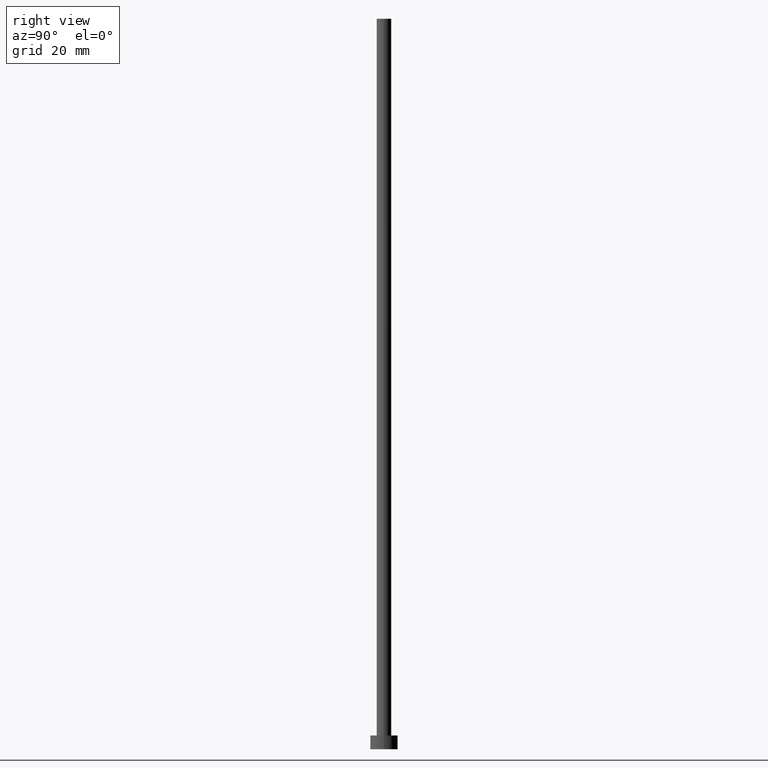
[diagram: clean part render]
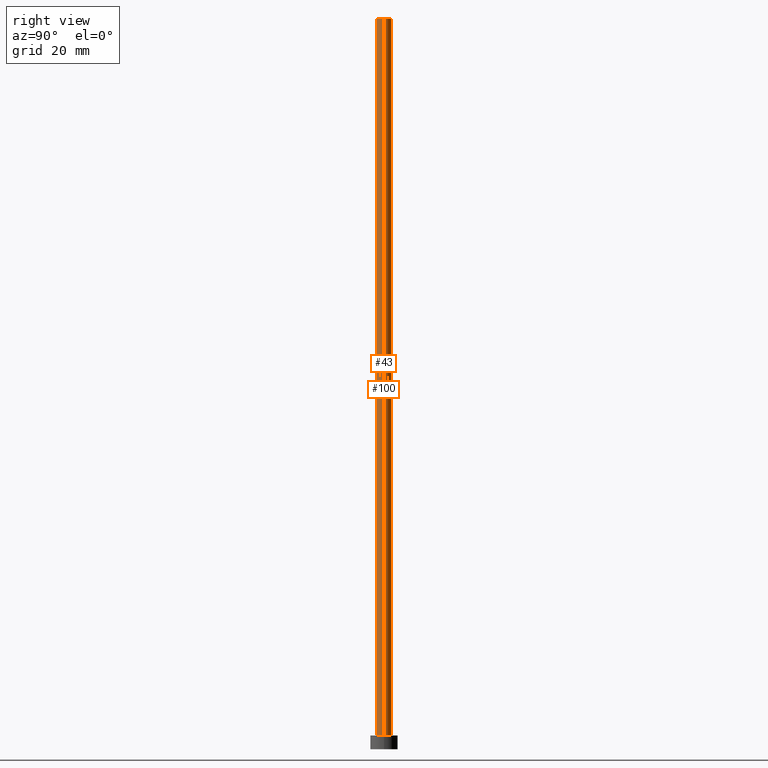
[diagram: same view with one multi-face feature highlighted, each face labeled with its STEP entity id]
A machine part, right view. The highlighted faces form ONE feature: a constant-radius fillet chain: 2 tangent blend faces with common blend radius 1.6 mm. The faces share edges in the B-rep.
Their STEP definitions:
[1] entity #43 (Cylinder):
#10 = LINE ( 'NONE', #153, #67 ) ;
#15 = CARTESIAN_POINT ( 'NONE',  ( 1.600000000000000089, 1.959434878635765230E-16, 160.0000000000000000 ) ) ;
#20 = VERTEX_POINT ( 'NONE', #71 ) ;
#29 = VERTEX_POINT ( 'NONE', #229 ) ;
#31 = AXIS2_PLACEMENT_3D ( 'NONE', #93, #37, #138 ) ;
#32 = DIRECTION ( 'NONE',  ( 1.000000000000000000, 0.000000000000000000, 0.000000000000000000 ) ) ;
#37 = DIRECTION ( 'NONE',  ( 0.000000000000000000, 0.000000000000000000, 1.000000000000000000 ) ) ;
#43 = ADVANCED_FACE ( 'NONE', ( #85 ), #131, .T. ) ;
#66 = EDGE_LOOP ( 'NONE', ( #243, #87, #152, #165 ) ) ;
#67 = VECTOR ( 'NONE', #171, 1000.000000000000000 ) ;
#71 = CARTESIAN_POINT ( 'NONE',  ( -1.600000000000000089, 0.000000000000000000, 160.0000000000000000 ) ) ;
#85 = FACE_OUTER_BOUND ( 'NONE', #66, .T. ) ;
#86 = EDGE_CURVE ( 'NONE', #20, #225, #207, .T. ) ;
#87 = ORIENTED_EDGE ( 'NONE', *, *, #86, .F. ) ;
#88 = AXIS2_PLACEMENT_3D ( 'NONE', #108, #210, #32 ) ;
#93 = CARTESIAN_POINT ( 'NONE',  ( 0.000000000000000000, 0.000000000000000000, 3.000000000000000000 ) ) ;
#108 = CARTESIAN_POINT ( 'NONE',  ( 0.000000000000000000, 0.000000000000000000, 160.0000000000000000 ) ) ;
#113 = DIRECTION ( 'NONE',  ( -0.000000000000000000, -0.000000000000000000, -1.000000000000000000 ) ) ;
#117 = EDGE_CURVE ( 'NONE', #225, #29, #10, .T. ) ;
#131 = CYLINDRICAL_SURFACE ( 'NONE', #142, 1.600000000000000089 ) ;
#138 = DIRECTION ( 'NONE',  ( 1.000000000000000000, 0.000000000000000000, 0.000000000000000000 ) ) ;
#139 = EDGE_CURVE ( 'NONE', #20, #156, #160, .T. ) ;
#142 = AXIS2_PLACEMENT_3D ( 'NONE', #228, #113, #173 ) ;
#152 = ORIENTED_EDGE ( 'NONE', *, *, #139, .T. ) ;
#153 = CARTESIAN_POINT ( 'NONE',  ( 1.600000000000000089, 1.959434878635765230E-16, 160.0000000000000000 ) ) ;
#156 = VERTEX_POINT ( 'NONE', #197 ) ;
#158 = CIRCLE ( 'NONE', #31, 1.600000000000000089 ) ;
#160 = LINE ( 'NONE', #231, #189 ) ;
#161 = DIRECTION ( 'NONE',  ( -0.000000000000000000, -0.000000000000000000, -1.000000000000000000 ) ) ;
#165 = ORIENTED_EDGE ( 'NONE', *, *, #203, .T. ) ;
#171 = DIRECTION ( 'NONE',  ( -0.000000000000000000, -0.000000000000000000, -1.000000000000000000 ) ) ;
#173 = DIRECTION ( 'NONE',  ( -1.000000000000000000, 0.000000000000000000, 0.000000000000000000 ) ) ;
#189 = VECTOR ( 'NONE', #161, 1000.000000000000000 ) ;
#197 = CARTESIAN_POINT ( 'NONE',  ( -1.600000000000000089, 0.000000000000000000, 3.000000000000000000 ) ) ;
#203 = EDGE_CURVE ( 'NONE', #156, #29, #158, .T. ) ;
#207 = CIRCLE ( 'NONE', #88, 1.600000000000000089 ) ;
#210 = DIRECTION ( 'NONE',  ( 0.000000000000000000, 0.000000000000000000, 1.000000000000000000 ) ) ;
#225 = VERTEX_POINT ( 'NONE', #15 ) ;
#228 = CARTESIAN_POINT ( 'NONE',  ( 0.000000000000000000, 0.000000000000000000, 160.0000000000000000 ) ) ;
#229 = CARTESIAN_POINT ( 'NONE',  ( 1.600000000000000089, 1.959434878635765230E-16, 3.000000000000000000 ) ) ;
#231 = CARTESIAN_POINT ( 'NONE',  ( -1.600000000000000089, 0.000000000000000000, 160.0000000000000000 ) ) ;
#243 = ORIENTED_EDGE ( 'NONE', *, *, #117, .F. ) ;
[2] entity #100 (Cylinder):
#3 = ORIENTED_EDGE ( 'NONE', *, *, #139, .F. ) ;
#10 = LINE ( 'NONE', #153, #67 ) ;
#13 = AXIS2_PLACEMENT_3D ( 'NONE', #159, #118, #199 ) ;
#14 = CARTESIAN_POINT ( 'NONE',  ( 0.000000000000000000, 0.000000000000000000, 160.0000000000000000 ) ) ;
#15 = CARTESIAN_POINT ( 'NONE',  ( 1.600000000000000089, 1.959434878635765230E-16, 160.0000000000000000 ) ) ;
#19 = DIRECTION ( 'NONE',  ( 1.000000000000000000, 0.000000000000000000, 0.000000000000000000 ) ) ;
#20 = VERTEX_POINT ( 'NONE', #71 ) ;
#21 = CIRCLE ( 'NONE', #129, 1.600000000000000089 ) ;
#29 = VERTEX_POINT ( 'NONE', #229 ) ;
#30 = DIRECTION ( 'NONE',  ( -0.000000000000000000, -0.000000000000000000, -1.000000000000000000 ) ) ;
#57 = CARTESIAN_POINT ( 'NONE',  ( 0.000000000000000000, 0.000000000000000000, 160.0000000000000000 ) ) ;
#67 = VECTOR ( 'NONE', #171, 1000.000000000000000 ) ;
#68 = ORIENTED_EDGE ( 'NONE', *, *, #252, .T. ) ;
#71 = CARTESIAN_POINT ( 'NONE',  ( -1.600000000000000089, 0.000000000000000000, 160.0000000000000000 ) ) ;
#80 = ORIENTED_EDGE ( 'NONE', *, *, #204, .F. ) ;
#91 = DIRECTION ( 'NONE',  ( 0.000000000000000000, 0.000000000000000000, 1.000000000000000000 ) ) ;
#100 = ADVANCED_FACE ( 'NONE', ( #194 ), #192, .T. ) ;
#102 = CIRCLE ( 'NONE', #13, 1.600000000000000089 ) ;
#117 = EDGE_CURVE ( 'NONE', #225, #29, #10, .T. ) ;
#118 = DIRECTION ( 'NONE',  ( 0.000000000000000000, 0.000000000000000000, 1.000000000000000000 ) ) ;
#128 = AXIS2_PLACEMENT_3D ( 'NONE', #14, #30, #172 ) ;
#129 = AXIS2_PLACEMENT_3D ( 'NONE', #57, #91, #19 ) ;
#139 = EDGE_CURVE ( 'NONE', #20, #156, #160, .T. ) ;
#150 = ORIENTED_EDGE ( 'NONE', *, *, #117, .T. ) ;
#153 = CARTESIAN_POINT ( 'NONE',  ( 1.600000000000000089, 1.959434878635765230E-16, 160.0000000000000000 ) ) ;
#156 = VERTEX_POINT ( 'NONE', #197 ) ;
#159 = CARTESIAN_POINT ( 'NONE',  ( 0.000000000000000000, 0.000000000000000000, 3.000000000000000000 ) ) ;
#160 = LINE ( 'NONE', #231, #189 ) ;
#161 = DIRECTION ( 'NONE',  ( -0.000000000000000000, -0.000000000000000000, -1.000000000000000000 ) ) ;
#171 = DIRECTION ( 'NONE',  ( -0.000000000000000000, -0.000000000000000000, -1.000000000000000000 ) ) ;
#172 = DIRECTION ( 'NONE',  ( -1.000000000000000000, 0.000000000000000000, 0.000000000000000000 ) ) ;
#189 = VECTOR ( 'NONE', #161, 1000.000000000000000 ) ;
#192 = CYLINDRICAL_SURFACE ( 'NONE', #128, 1.600000000000000089 ) ;
#194 = FACE_OUTER_BOUND ( 'NONE', #226, .T. ) ;
#197 = CARTESIAN_POINT ( 'NONE',  ( -1.600000000000000089, 0.000000000000000000, 3.000000000000000000 ) ) ;
#199 = DIRECTION ( 'NONE',  ( 1.000000000000000000, 0.000000000000000000, 0.000000000000000000 ) ) ;
#204 = EDGE_CURVE ( 'NONE', #225, #20, #21, .T. ) ;
#225 = VERTEX_POINT ( 'NONE', #15 ) ;
#226 = EDGE_LOOP ( 'NONE', ( #80, #150, #68, #3 ) ) ;
#229 = CARTESIAN_POINT ( 'NONE',  ( 1.600000000000000089, 1.959434878635765230E-16, 3.000000000000000000 ) ) ;
#231 = CARTESIAN_POINT ( 'NONE',  ( -1.600000000000000089, 0.000000000000000000, 160.0000000000000000 ) ) ;
#252 = EDGE_CURVE ( 'NONE', #29, #156, #102, .T. ) ;